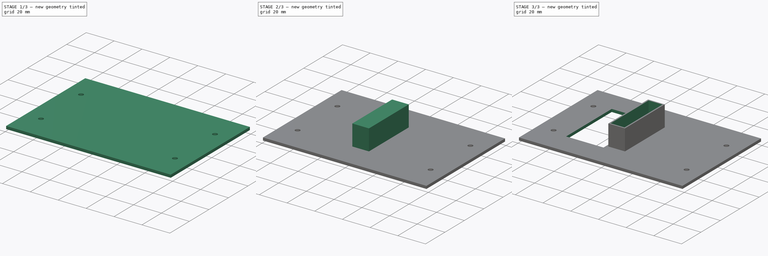
[diagram: build sequence overview — one tinted view per stage of 3, left to right]
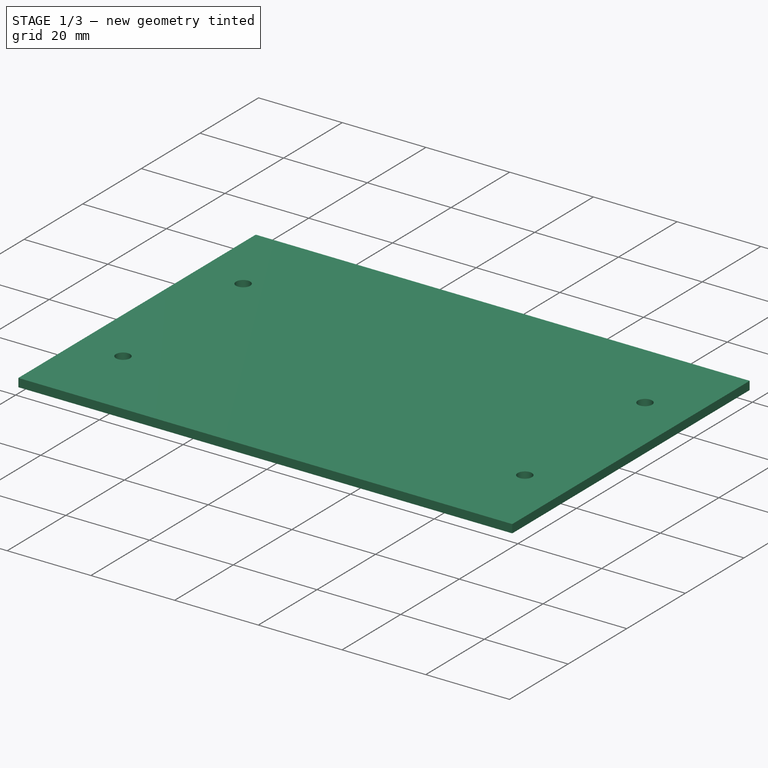
[diagram: stage 1 of 3 — iso view after this stage's code; geometry added in this stage tinted green]
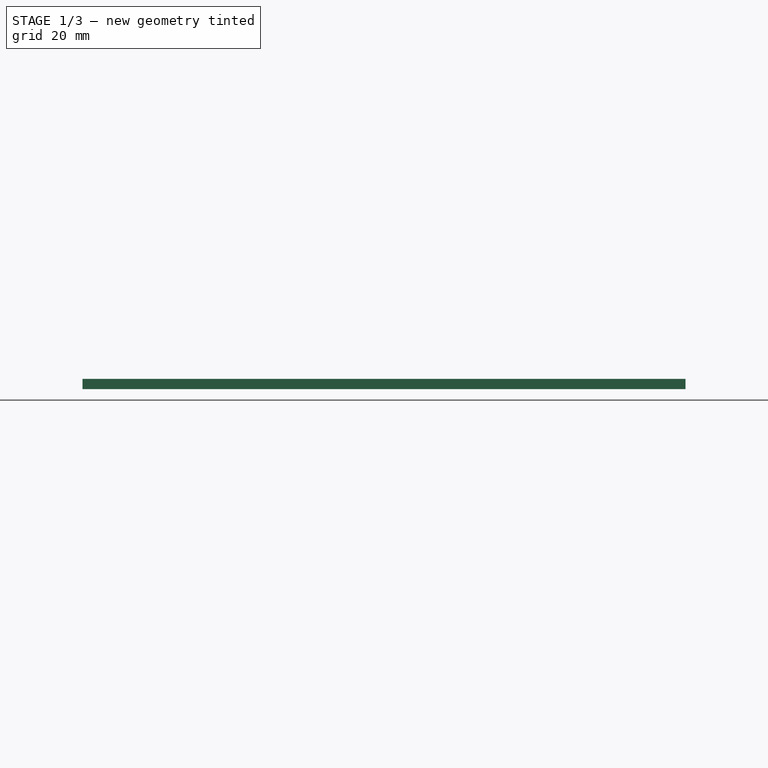
[diagram: stage 1 of 3 — front view after this stage's code; geometry added in this stage tinted green]
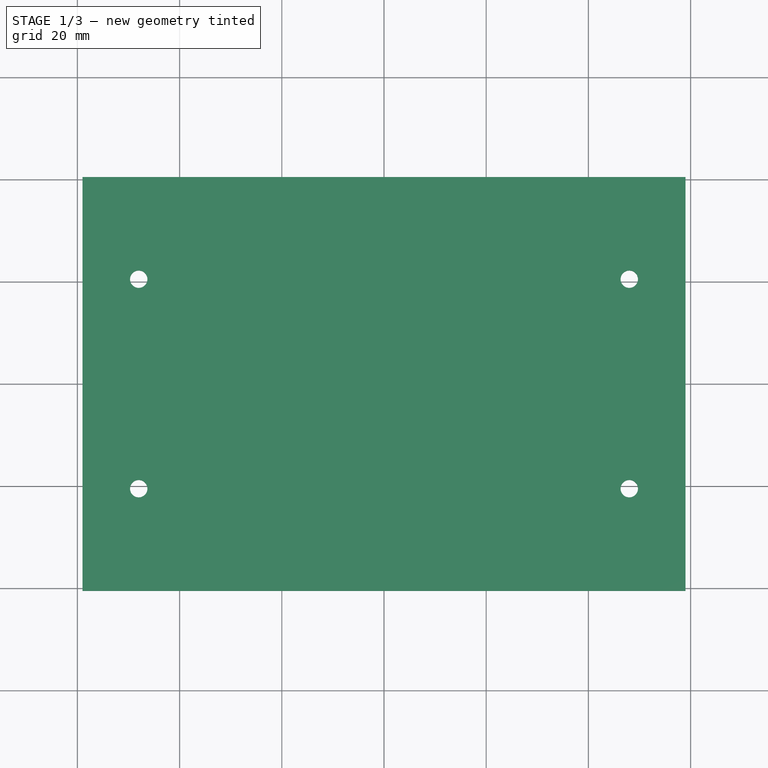
[diagram: stage 1 of 3 — top view after this stage's code; geometry added in this stage tinted green]
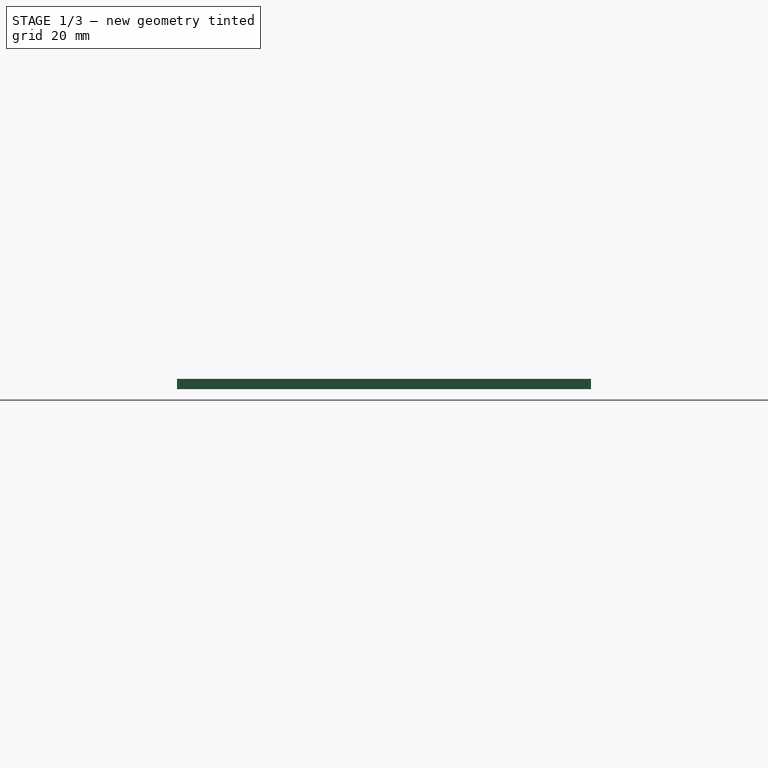
[diagram: stage 1 of 3 — right view after this stage's code; geometry added in this stage tinted green]
FCSTD DOCUMENT  (FreeCAD 0.19R23578 (Git))
Label: coin_chute
License: All rights reserved
LicenseURL: http://en.wikipedia.org/wiki/All_rights_reserved
objects: Sketcher::SketchObject×5, PartDesign::Pad×2, PartDesign::Pocket×2, PartDesign::Hole×1, PartDesign::Body×1
note: 16 computed .brp shape members not serialized (recipe doc carries the construction recipe); baked Part::Feature solids carry a one-line shape summary decoded from their .brp

FEATURE [Sketcher::SketchObject] Sketch
  MapMode = 5
  Support = -> [XY_Plane]
  expr: Constraints[7] = 41 + 20 + 20
  expr: Constraints[6] = 11 + 11 + 96
  sketch-geometry (4):
    g0: LineSegment StartX=-59 StartY=40.5 StartZ=0 EndX=59 EndY=40.5 EndZ=0
    g1: LineSegment StartX=59 StartY=40.5 StartZ=0 EndX=59 EndY=-40.5 EndZ=0
    g2: LineSegment StartX=59 StartY=-40.5 StartZ=0 EndX=-59 EndY=-40.5 EndZ=0
    g3: LineSegment StartX=-59 StartY=-40.5 StartZ=0 EndX=-59 EndY=40.5 EndZ=0
  constraints (10):
    c: Coincident(g0,g1)
    c: Coincident(g1,g2)
    c: Coincident(g2,g3)
    c: Coincident(g3,g0)
    c: Horizontal(g0)
    c: Vertical(g1)
    c: DistanceX(g0,g0) = 118
    c: DistanceY(g3,g3) = 81
    c: Symmetric(g2,g1,g-2)
    c: Symmetric(g0,g2,g-1)
FEATURE [PartDesign::Pad] Pad
  Direction = (1,1,1)
  Length = 2
  Length2 = 100
  Profile = -> Sketch
  Type = 0
FEATURE [Sketcher::SketchObject] Sketch001
  ExternalGeometry = -> [Pad]
  MapMode = 5
  Placement = pos=(0,0,0) rot=(1,0,0;3.14159rad)
  Support = -> [Pad]
  sketch-geometry (4):
    g0: Circle CenterX=-48 CenterY=20.5 CenterZ=0 NormalX=0 NormalY=0 NormalZ=1 AngleXU=0 Radius=1.5
    g1: Circle CenterX=-48 CenterY=-20.5 CenterZ=0 NormalX=0 NormalY=0 NormalZ=1 AngleXU=0 Radius=1.5
    g2: Circle CenterX=48 CenterY=20.5 CenterZ=0 NormalX=0 NormalY=0 NormalZ=1 AngleXU=0 Radius=1.5
    g3: Circle CenterX=48 CenterY=-20.5 CenterZ=0 NormalX=0 NormalY=0 NormalZ=1 AngleXU=0 Radius=1.5
  constraints (12):
    c: Diameter(g0) = 3
    c: DistanceY(g0,g-4) = 20
    c: Distance(g0,g-3) = 11
    c: Diameter(g1) = 3
    c: DistanceY(g-6,g1) = 20
    c: DistanceX(g-6,g1) = 11
    c: Diameter(g2) = 3
    c: DistanceY(g2,g-5) = 20
    c: DistanceX(g2,g-5) = 11
    c: Diameter(g3) = 3
    c: DistanceY(g-6,g3) = 20
    c: DistanceX(g3,g-6) = 11
FEATURE [PartDesign::Hole] Hole
  BaseFeature = -> Pad
  Depth = 25
  DepthType = 0
  Diameter = 3.4
  DrillPoint = 1
  DrillPointAngle = 118
  HoleCutCountersinkAngle = 90
  HoleCutDepth = 0
  HoleCutDiameter = 0
  HoleCutType = 0
  ModelActualThread = false
  Profile = -> Sketch001
  Tapered = false
  TaperedAngle = 90
  ThreadAngle = 60
  ThreadClass = 0
  ThreadCutOffInner = 0.0541266
  ThreadCutOffOuter = 0.108253
  ThreadDirection = 0
  ThreadFit = 0
  ThreadPitch = 0.5
  ThreadSize = 9
  ThreadType = 1
  Threaded = false
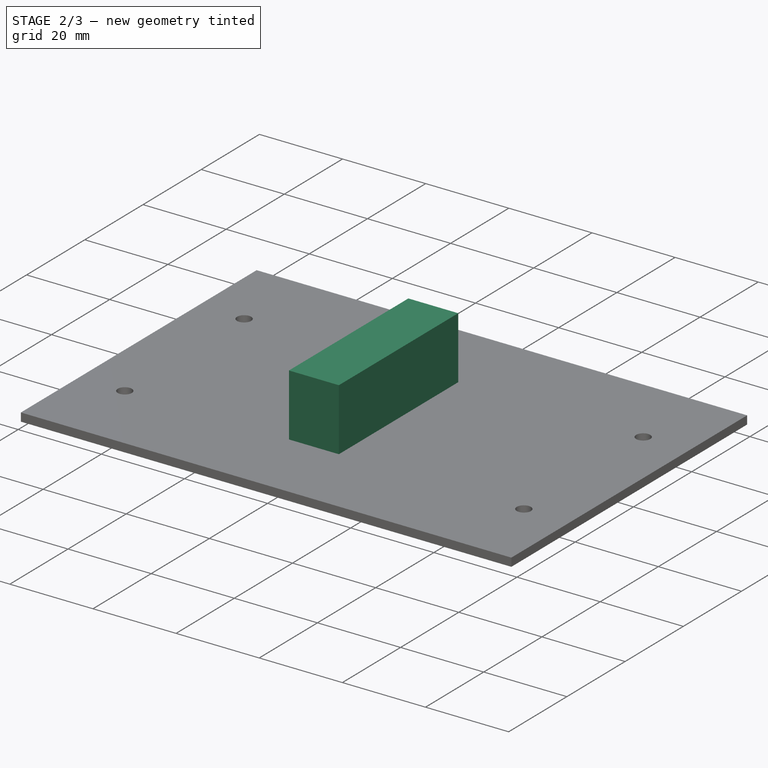
[diagram: stage 2 of 3 — iso view after this stage's code; geometry added in this stage tinted green]
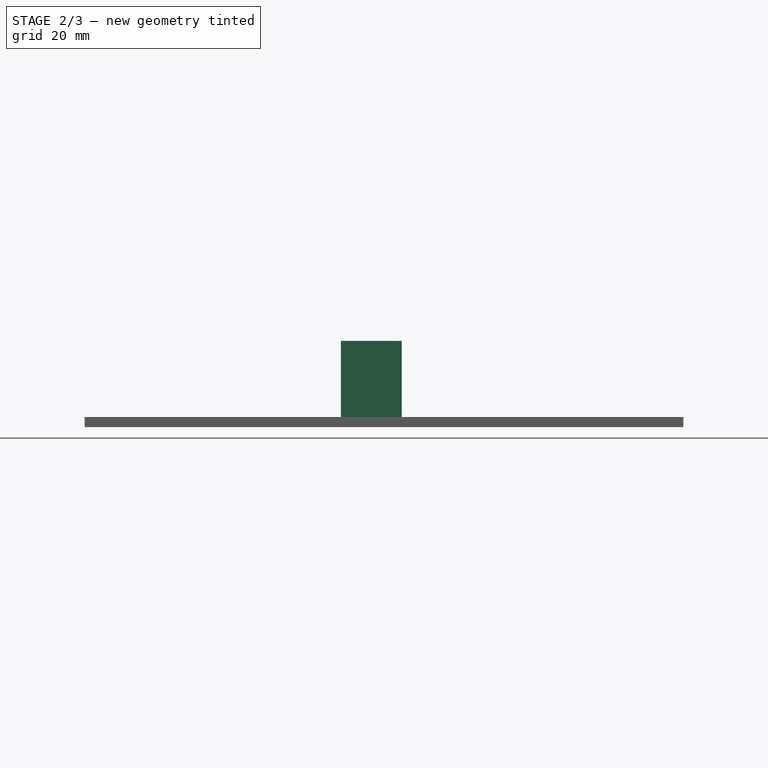
[diagram: stage 2 of 3 — front view after this stage's code; geometry added in this stage tinted green]
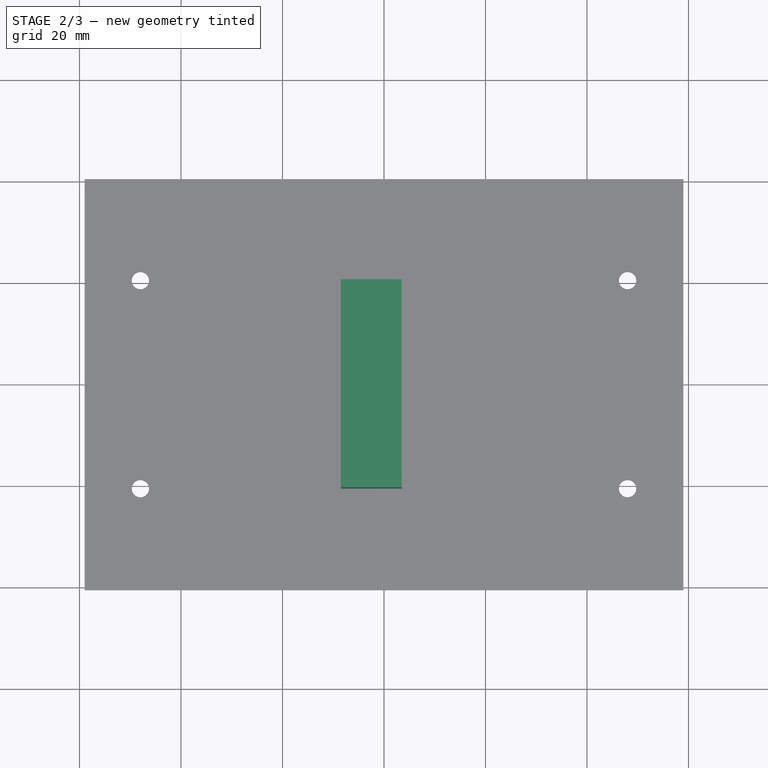
[diagram: stage 2 of 3 — top view after this stage's code; geometry added in this stage tinted green]
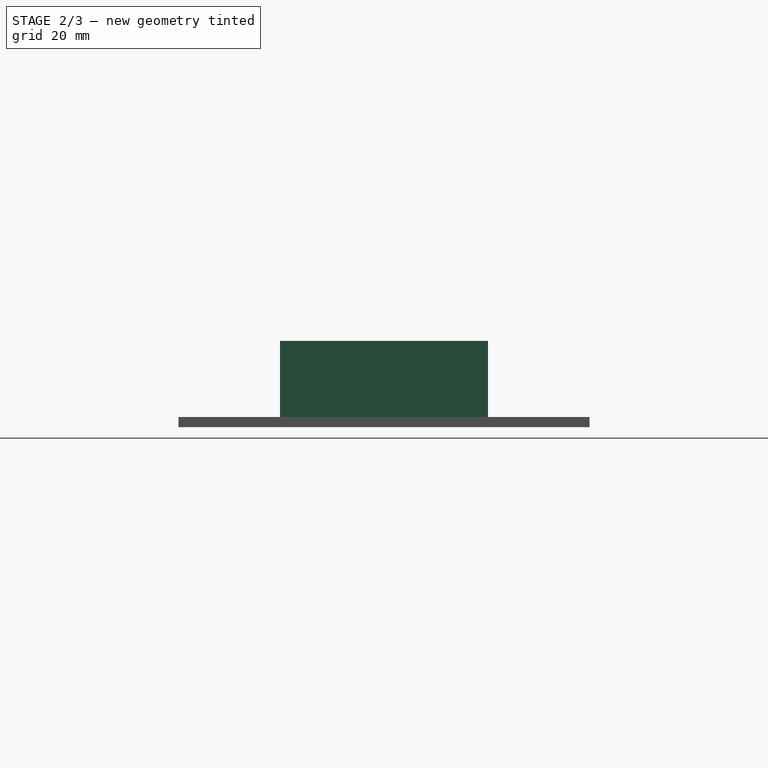
[diagram: stage 2 of 3 — right view after this stage's code; geometry added in this stage tinted green]
FEATURE [Sketcher::SketchObject] Sketch002
  ExternalGeometry = -> [Hole]
  MapMode = 5
  Placement = pos=(0,0,2) rot=(0,0,1;0rad)
  Support = -> [Hole]
  expr: Constraints[10] = 46 - 1.5
  expr: Constraints[9] = 41 - 1.5
  sketch-geometry (4):
    g0: LineSegment StartX=-8.5 StartY=20.5 StartZ=0 EndX=3.5 EndY=20.5 EndZ=0
    g1: LineSegment StartX=3.5 StartY=20.5 StartZ=0 EndX=3.5 EndY=-20.5 EndZ=0
    g2: LineSegment StartX=3.5 StartY=-20.5 StartZ=0 EndX=-8.5 EndY=-20.5 EndZ=0
    g3: LineSegment StartX=-8.5 StartY=-20.5 StartZ=0 EndX=-8.5 EndY=20.5 EndZ=0
  constraints (12):
    c: Coincident(g0,g1)
    c: Coincident(g1,g2)
    c: Coincident(g2,g3)
    c: Coincident(g3,g0)
    c: Horizontal(g0)
    c: Horizontal(g2)
    c: Vertical(g1)
    c: Vertical(g3)
    c: DistanceY(g0,g-5) = 0
    c: DistanceX(g-3,g2) = 39.5
    c: DistanceX(g1,g-4) = 44.5
    c: DistanceY(g2,g-3) = 0
FEATURE [PartDesign::Pad] Pad001
  BaseFeature = -> Hole
  Direction = (1,1,1)
  Length = 15
  Length2 = 100
  Profile = -> Sketch002
  Type = 0
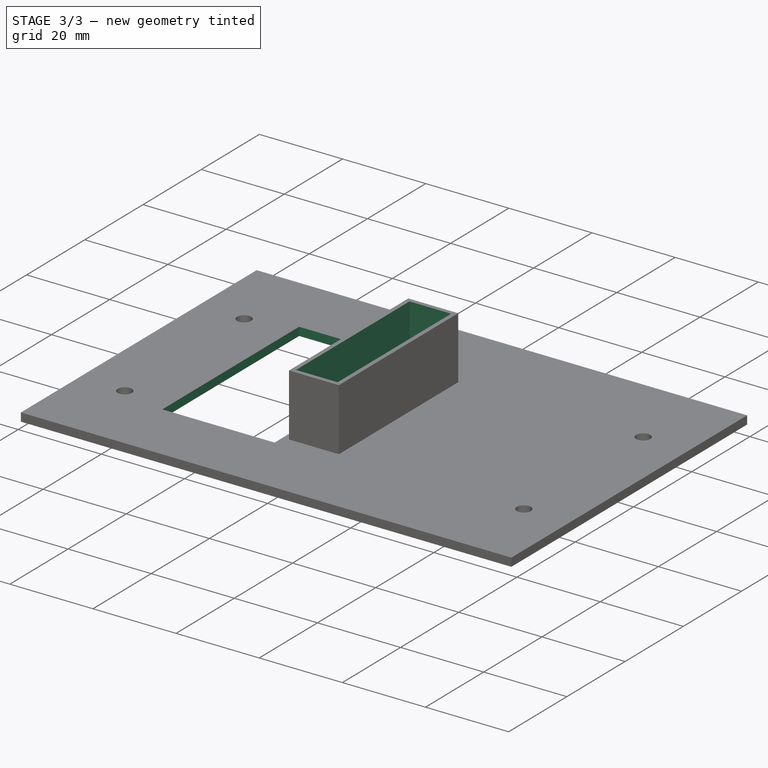
[diagram: stage 3 of 3 — iso view after this stage's code; geometry added in this stage tinted green]
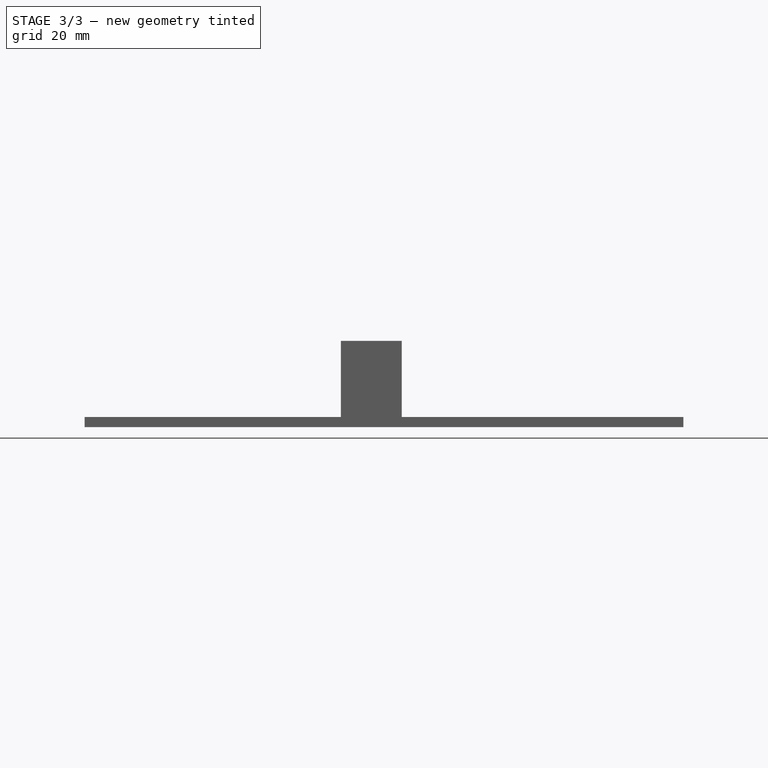
[diagram: stage 3 of 3 — front view after this stage's code; geometry added in this stage tinted green]
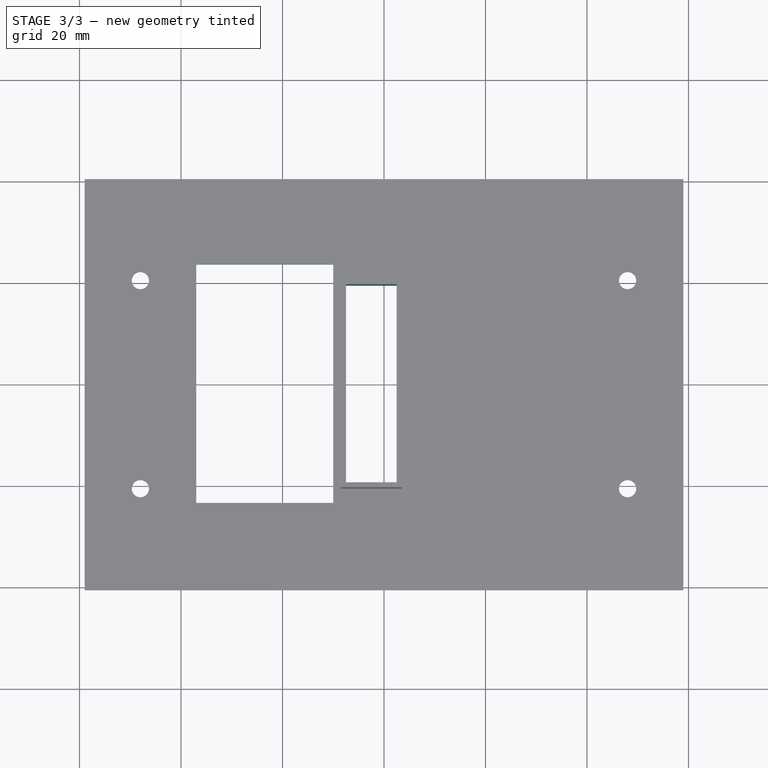
[diagram: stage 3 of 3 — top view after this stage's code; geometry added in this stage tinted green]
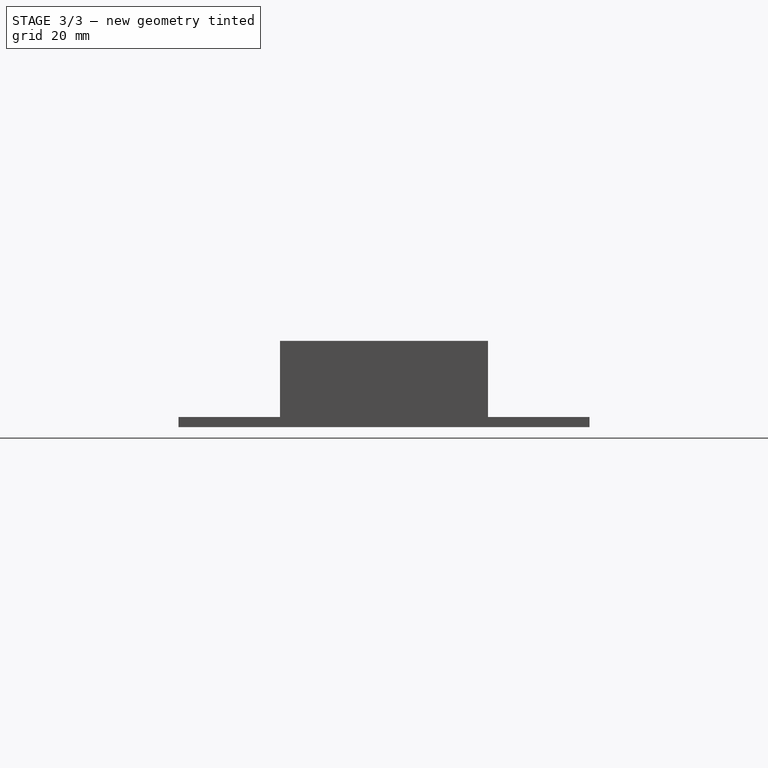
[diagram: stage 3 of 3 — right view after this stage's code; geometry added in this stage tinted green]
FEATURE [Sketcher::SketchObject] Sketch003
  ExternalGeometry = -> [Pad001]
  MapMode = 5
  Placement = pos=(0,0,17) rot=(0,0,1;0rad)
  Support = -> [Pad001]
  sketch-geometry (4):
    g0: LineSegment StartX=-7.5 StartY=19.5 StartZ=0 EndX=2.5 EndY=19.5 EndZ=0
    g1: LineSegment StartX=2.5 StartY=19.5 StartZ=0 EndX=2.5 EndY=-19.5 EndZ=0
    g2: LineSegment StartX=2.5 StartY=-19.5 StartZ=0 EndX=-7.5 EndY=-19.5 EndZ=0
    g3: LineSegment StartX=-7.5 StartY=-19.5 StartZ=0 EndX=-7.5 EndY=19.5 EndZ=0
  constraints (12):
    c: Coincident(g0,g1)
    c: Coincident(g1,g2)
    c: Coincident(g2,g3)
    c: Coincident(g3,g0)
    c: Horizontal(g0)
    c: Horizontal(g2)
    c: Vertical(g1)
    c: Vertical(g3)
    c: DistanceY(g0,g-5) = 1
    c: DistanceX(g-5,g0) = 1
    c: DistanceX(g0,g-4) = 1
    c: DistanceY(g-6,g2) = 1
FEATURE [PartDesign::Pocket] Pocket
  BaseFeature = -> Pad001
  Length = 5
  Length2 = 100
  Profile = -> Sketch003
  Type = 1
FEATURE [Sketcher::SketchObject] Sketch004
  ExternalGeometry = -> [Pocket]
  MapMode = 5
  Placement = pos=(0,0,2) rot=(0,0,1;0rad)
  Support = -> [Pocket]
  sketch-geometry (4):
    g0: LineSegment StartX=-37 StartY=23.6805 StartZ=0 EndX=-10 EndY=23.6805 EndZ=0
    g1: LineSegment StartX=-10 StartY=23.6805 StartZ=0 EndX=-10 EndY=-23.3195 EndZ=0
    g2: LineSegment StartX=-10 StartY=-23.3195 StartZ=0 EndX=-37 EndY=-23.3195 EndZ=0
    g3: LineSegment StartX=-37 StartY=-23.3195 StartZ=0 EndX=-37 EndY=23.6805 EndZ=0
  constraints (11):
    c: Coincident(g0,g1)
    c: Coincident(g1,g2)
    c: Coincident(g2,g3)
    c: Coincident(g3,g0)
    c: Horizontal(g0)
    c: Horizontal(g2)
    c: Vertical(g1)
    c: Vertical(g3)
    c: Distance(g0) = 27
    c: Distance(g3) = 47
    c: DistanceX(g-3,g0) = 11
FEATURE [PartDesign::Pocket] Pocket001
  BaseFeature = -> Pocket
  Length = 5
  Length2 = 100
  Profile = -> Sketch004
  Type = 0
FEATURE [PartDesign::Body] Body
  Group = -> [Sketch,Pad,Sketch001,Hole,Sketch002,Pad001,Sketch003,Pocket,Sketch004,Pocket001]
  Origin = -> Origin
  Tip = -> Pocket001
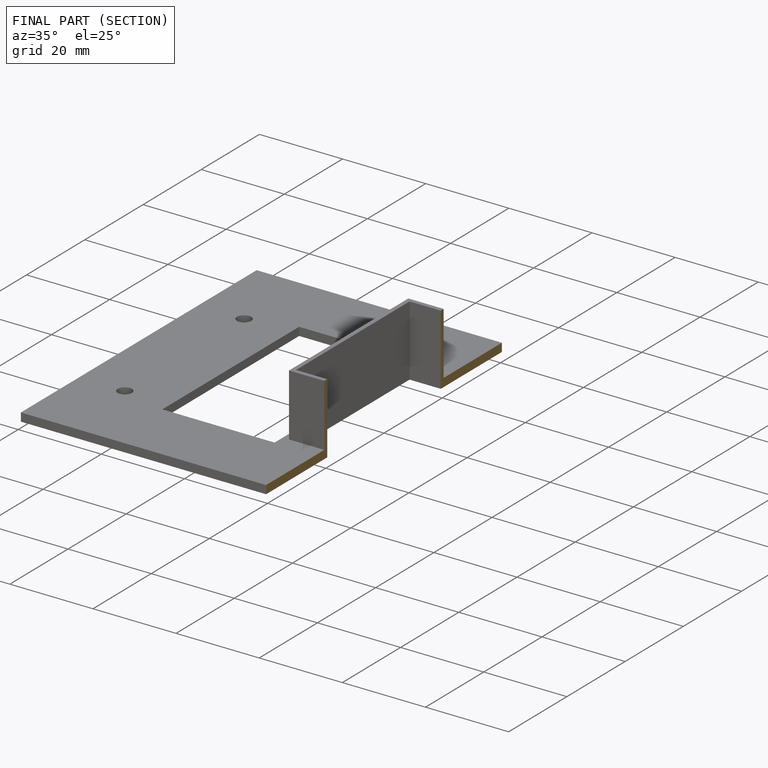
[diagram: finished part — half-section view (interior)]
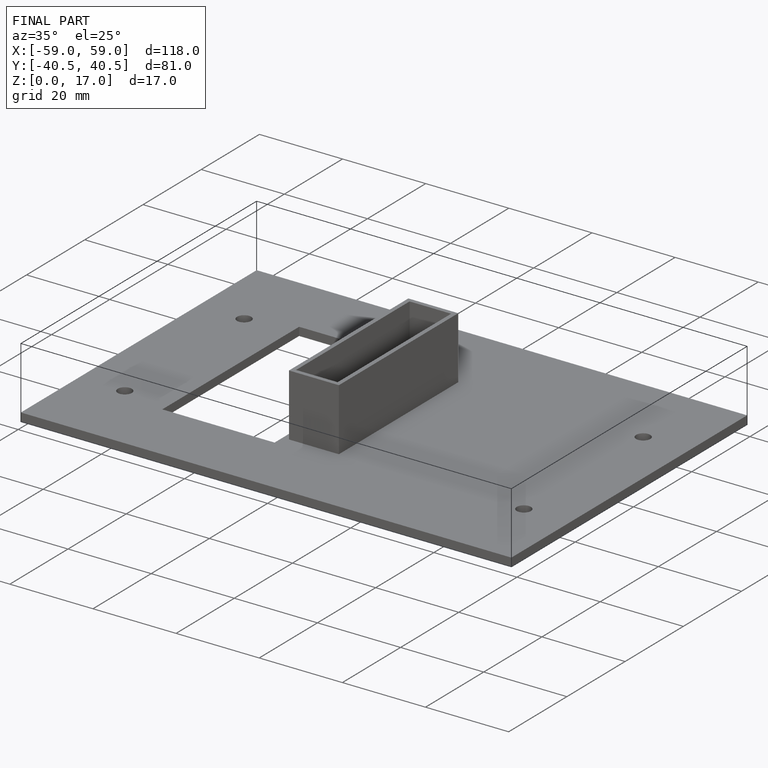
[diagram: finished part — iso view with bounding-box wireframe]
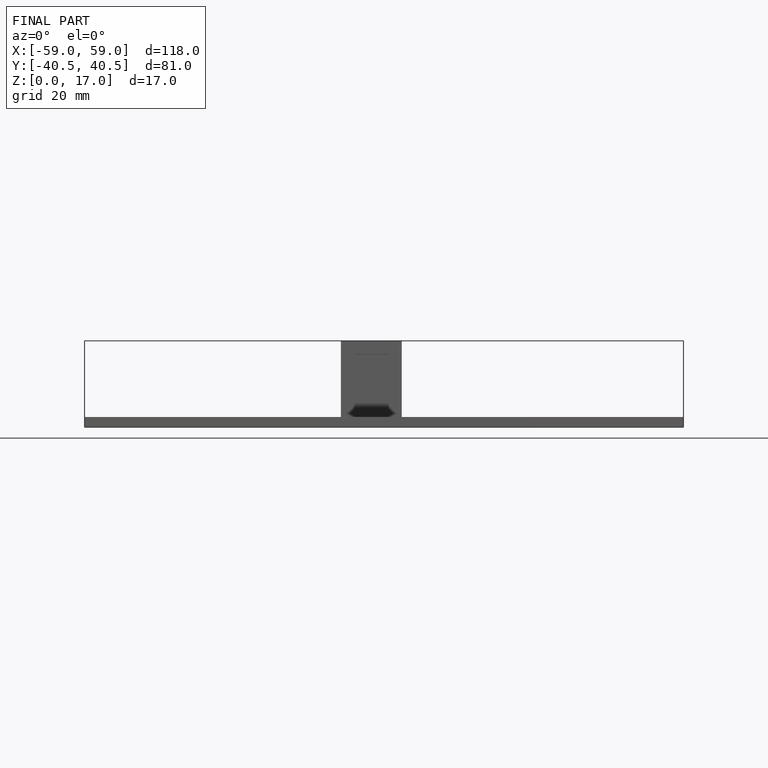
[diagram: finished part — front view with bounding-box wireframe]
